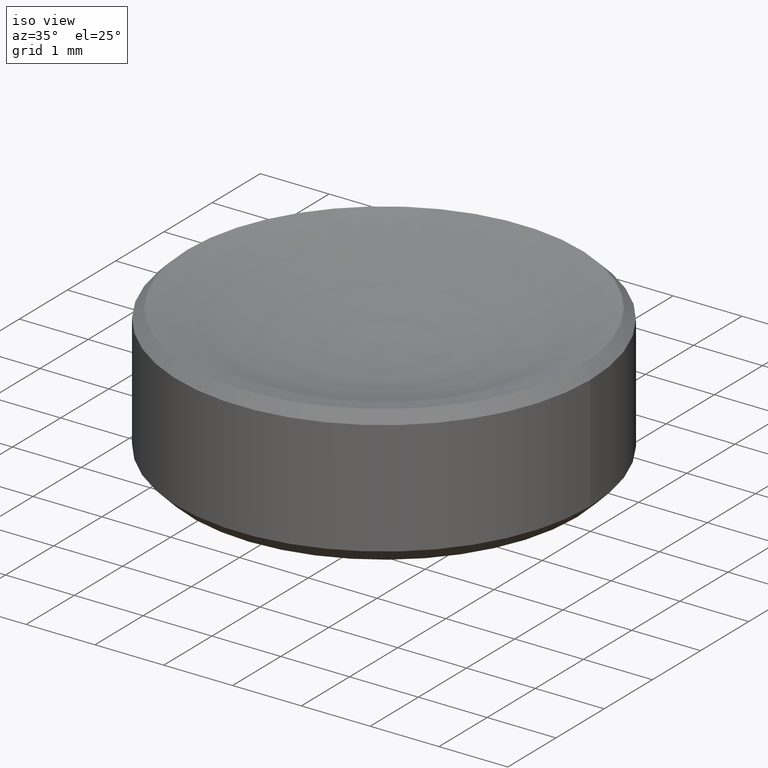
[diagram: clean part render]
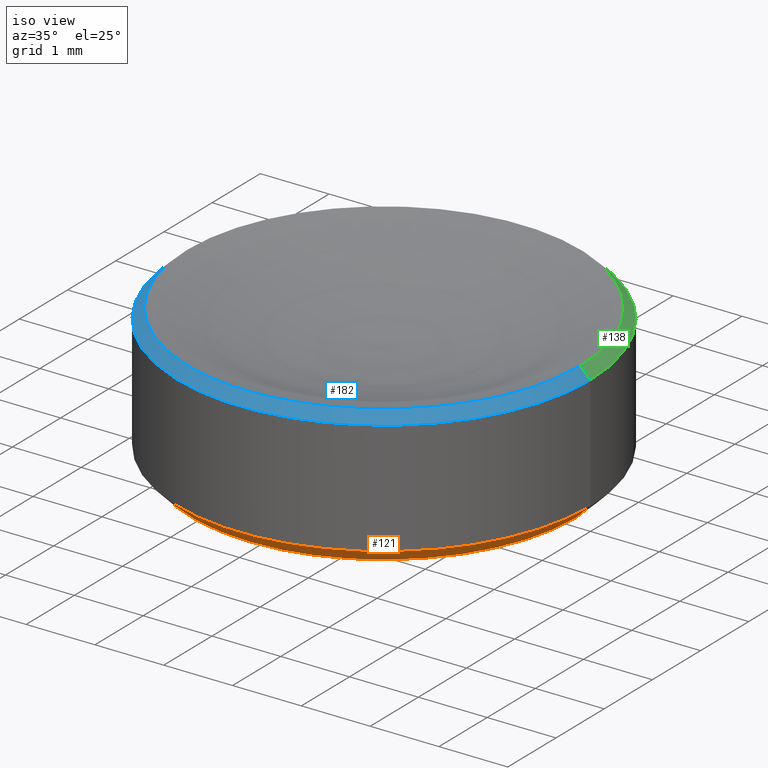
[diagram: same view with three faces highlighted in distinct colors, each labeled with its STEP entity id]
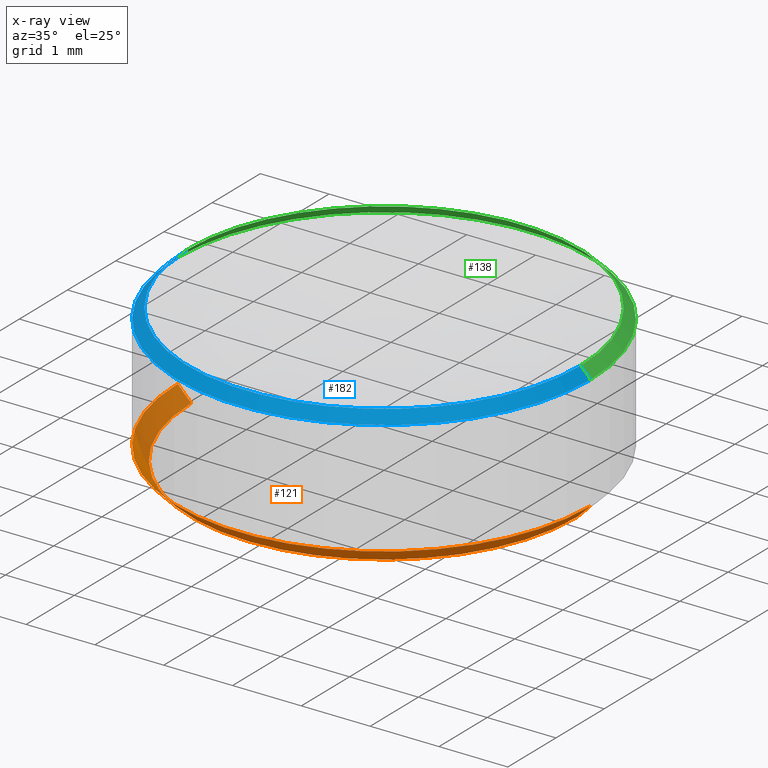
[diagram: x-ray of the same camera — body ghosted, the three highlighted faces saturated]
A machine part, iso view with three faces highlighted in distinct colors.
The next image is the same camera in x-ray (body ghosted, the three faces saturated) — at least one of them is partly hidden behind the body in this view.
Their STEP definitions:

[orange] entity #121 — the highlighted conical surface has half-angle 45 deg.
#1 = DIRECTION ( 'NONE',  ( -0.000000000000000000, -0.000000000000000000, 1.000000000000000000 ) ) ;
#3 = FACE_OUTER_BOUND ( 'NONE', #8, .T. ) ;
#8 = EDGE_LOOP ( 'NONE', ( #210, #163, #265, #141 ) ) ;
#12 = AXIS2_PLACEMENT_3D ( 'NONE', #216, #252, #111 ) ;
#16 = VECTOR ( 'NONE', #234, 1000.000000000000114 ) ;
#45 = LINE ( 'NONE', #236, #16 ) ;
#75 = CONICAL_SURFACE ( 'NONE', #228, 3.000000000000000000, 0.7853981633974482790 ) ;
#86 = CIRCLE ( 'NONE', #12, 2.799999999999998046 ) ;
#88 = CARTESIAN_POINT ( 'NONE',  ( 3.000000000000000000, 0.000000000000000000, 0.2000000000000020373 ) ) ;
#96 = CARTESIAN_POINT ( 'NONE',  ( -3.000000000000000000, 3.673940397442059868E-16, 0.2000000000000020373 ) ) ;
#106 = EDGE_CURVE ( 'NONE', #167, #114, #173, .T. ) ;
#111 = DIRECTION ( 'NONE',  ( 1.000000000000000000, 0.000000000000000000, 0.000000000000000000 ) ) ;
#114 = VERTEX_POINT ( 'NONE', #150 ) ;
#121 = ADVANCED_FACE ( 'NONE', ( #3 ), #75, .T. ) ;
#129 = DIRECTION ( 'NONE',  ( 1.000000000000000000, 0.000000000000000000, 0.000000000000000000 ) ) ;
#137 = EDGE_CURVE ( 'NONE', #245, #187, #45, .T. ) ;
#141 = ORIENTED_EDGE ( 'NONE', *, *, #155, .F. ) ;
#150 = CARTESIAN_POINT ( 'NONE',  ( 3.000000000000000000, 0.000000000000000000, 0.2000000000000020373 ) ) ;
#155 = EDGE_CURVE ( 'NONE', #187, #114, #198, .T. ) ;
#157 = CARTESIAN_POINT ( 'NONE',  ( -2.799999999999998046, 3.551475717527323339E-16, 1.836970198721029934E-16 ) ) ;
#163 = ORIENTED_EDGE ( 'NONE', *, *, #176, .F. ) ;
#167 = VERTEX_POINT ( 'NONE', #171 ) ;
#171 = CARTESIAN_POINT ( 'NONE',  ( 2.799999999999998046, 0.000000000000000000, 1.836970198721029934E-16 ) ) ;
#172 = DIRECTION ( 'NONE',  ( 0.7071067811865474617, 0.000000000000000000, 0.7071067811865474617 ) ) ;
#173 = LINE ( 'NONE', #88, #179 ) ;
#176 = EDGE_CURVE ( 'NONE', #167, #245, #86, .T. ) ;
#177 = DIRECTION ( 'NONE',  ( -0.000000000000000000, -0.000000000000000000, 1.000000000000000000 ) ) ;
#179 = VECTOR ( 'NONE', #172, 1000.000000000000114 ) ;
#187 = VERTEX_POINT ( 'NONE', #96 ) ;
#196 = DIRECTION ( 'NONE',  ( 1.000000000000000000, 0.000000000000000000, 0.000000000000000000 ) ) ;
#198 = CIRCLE ( 'NONE', #212, 3.000000000000000000 ) ;
#210 = ORIENTED_EDGE ( 'NONE', *, *, #137, .F. ) ;
#212 = AXIS2_PLACEMENT_3D ( 'NONE', #231, #177, #129 ) ;
#215 = CARTESIAN_POINT ( 'NONE',  ( 0.000000000000000000, 0.000000000000000000, 0.2000000000000020373 ) ) ;
#216 = CARTESIAN_POINT ( 'NONE',  ( 0.000000000000000000, 0.000000000000000000, 1.836970198721029934E-16 ) ) ;
#228 = AXIS2_PLACEMENT_3D ( 'NONE', #215, #1, #196 ) ;
#231 = CARTESIAN_POINT ( 'NONE',  ( 0.000000000000000000, 0.000000000000000000, 0.2000000000000020373 ) ) ;
#234 = DIRECTION ( 'NONE',  ( -0.7071067811865474617, 8.659560562354932858E-17, 0.7071067811865474617 ) ) ;
#236 = CARTESIAN_POINT ( 'NONE',  ( -3.000000000000000000, 3.673940397442059868E-16, 0.2000000000000020373 ) ) ;
#245 = VERTEX_POINT ( 'NONE', #157 ) ;
#252 = DIRECTION ( 'NONE',  ( 0.000000000000000000, 0.000000000000000000, -1.000000000000000000 ) ) ;
#265 = ORIENTED_EDGE ( 'NONE', *, *, #106, .T. ) ;

[blue] entity #182 — the highlighted conical surface has half-angle 45 deg.
#2 = CARTESIAN_POINT ( 'NONE',  ( 0.000000000000000000, 0.000000000000000000, 1.860000000000000542 ) ) ;
#6 = EDGE_CURVE ( 'NONE', #117, #57, #260, .T. ) ;
#9 = AXIS2_PLACEMENT_3D ( 'NONE', #253, #42, #71 ) ;
#14 = CARTESIAN_POINT ( 'NONE',  ( -3.000000000000000000, 3.673940397442059868E-16, 1.860000000000000542 ) ) ;
#17 = VERTEX_POINT ( 'NONE', #82 ) ;
#19 = DIRECTION ( 'NONE',  ( -0.7071067811865474617, 0.000000000000000000, -0.7071067811865474617 ) ) ;
#40 = ORIENTED_EDGE ( 'NONE', *, *, #6, .T. ) ;
#42 = DIRECTION ( 'NONE',  ( -0.000000000000000000, -0.000000000000000000, 1.000000000000000000 ) ) ;
#46 = CARTESIAN_POINT ( 'NONE',  ( 0.000000000000000000, 0.000000000000000000, 2.005191786043217572 ) ) ;
#57 = VERTEX_POINT ( 'NONE', #14 ) ;
#63 = CIRCLE ( 'NONE', #158, 3.000000000000000000 ) ;
#64 = LINE ( 'NONE', #83, #180 ) ;
#65 = EDGE_CURVE ( 'NONE', #17, #248, #64, .T. ) ;
#66 = DIRECTION ( 'NONE',  ( -1.000000000000000000, 0.000000000000000000, 0.000000000000000000 ) ) ;
#71 = DIRECTION ( 'NONE',  ( 1.000000000000000000, 0.000000000000000000, 0.000000000000000000 ) ) ;
#82 = CARTESIAN_POINT ( 'NONE',  ( 2.854808213956783192, 0.000000000000000000, 2.005191786043217572 ) ) ;
#83 = CARTESIAN_POINT ( 'NONE',  ( 2.854808213956783192, 3.496131741401746917E-16, 2.005191786043217572 ) ) ;
#87 = CARTESIAN_POINT ( 'NONE',  ( -2.854808213956783192, 3.496131741401746917E-16, 2.005191786043217572 ) ) ;
#94 = EDGE_CURVE ( 'NONE', #248, #57, #63, .T. ) ;
#98 = ORIENTED_EDGE ( 'NONE', *, *, #94, .F. ) ;
#100 = ORIENTED_EDGE ( 'NONE', *, *, #145, .F. ) ;
#101 = CONICAL_SURFACE ( 'NONE', #188, 2.854808213956783192, 0.7853981633974482790 ) ;
#109 = DIRECTION ( 'NONE',  ( 0.000000000000000000, 0.000000000000000000, -1.000000000000000000 ) ) ;
#110 = DIRECTION ( 'NONE',  ( 0.000000000000000000, 0.000000000000000000, -1.000000000000000000 ) ) ;
#117 = VERTEX_POINT ( 'NONE', #87 ) ;
#135 = DIRECTION ( 'NONE',  ( -1.000000000000000000, 0.000000000000000000, 0.000000000000000000 ) ) ;
#143 = ORIENTED_EDGE ( 'NONE', *, *, #65, .F. ) ;
#145 = EDGE_CURVE ( 'NONE', #117, #17, #251, .T. ) ;
#147 = VECTOR ( 'NONE', #19, 1000.000000000000114 ) ;
#148 = DIRECTION ( 'NONE',  ( 0.7071067811865474617, 8.659560562354932858E-17, -0.7071067811865474617 ) ) ;
#158 = AXIS2_PLACEMENT_3D ( 'NONE', #2, #109, #66 ) ;
#168 = EDGE_LOOP ( 'NONE', ( #143, #100, #40, #98 ) ) ;
#180 = VECTOR ( 'NONE', #148, 1000.000000000000114 ) ;
#182 = ADVANCED_FACE ( 'NONE', ( #199 ), #101, .T. ) ;
#188 = AXIS2_PLACEMENT_3D ( 'NONE', #46, #110, #135 ) ;
#199 = FACE_OUTER_BOUND ( 'NONE', #168, .T. ) ;
#225 = CARTESIAN_POINT ( 'NONE',  ( 3.000000000000000000, 0.000000000000000000, 1.860000000000000542 ) ) ;
#248 = VERTEX_POINT ( 'NONE', #225 ) ;
#251 = CIRCLE ( 'NONE', #9, 2.854808213956783192 ) ;
#253 = CARTESIAN_POINT ( 'NONE',  ( 0.000000000000000000, 0.000000000000000000, 2.005191786043217572 ) ) ;
#260 = LINE ( 'NONE', #263, #147 ) ;
#263 = CARTESIAN_POINT ( 'NONE',  ( -2.854808213956783192, 0.000000000000000000, 2.005191786043217572 ) ) ;

[green] entity #138 — the highlighted conical surface has half-angle 45 deg.
#6 = EDGE_CURVE ( 'NONE', #117, #57, #260, .T. ) ;
#10 = ORIENTED_EDGE ( 'NONE', *, *, #240, .F. ) ;
#14 = CARTESIAN_POINT ( 'NONE',  ( -3.000000000000000000, 3.673940397442059868E-16, 1.860000000000000542 ) ) ;
#17 = VERTEX_POINT ( 'NONE', #82 ) ;
#19 = DIRECTION ( 'NONE',  ( -0.7071067811865474617, 0.000000000000000000, -0.7071067811865474617 ) ) ;
#20 = EDGE_LOOP ( 'NONE', ( #37, #53, #10, #104 ) ) ;
#22 = AXIS2_PLACEMENT_3D ( 'NONE', #90, #149, #133 ) ;
#30 = CARTESIAN_POINT ( 'NONE',  ( 0.000000000000000000, 0.000000000000000000, 2.005191786043217572 ) ) ;
#37 = ORIENTED_EDGE ( 'NONE', *, *, #229, .F. ) ;
#47 = AXIS2_PLACEMENT_3D ( 'NONE', #30, #219, #246 ) ;
#53 = ORIENTED_EDGE ( 'NONE', *, *, #65, .T. ) ;
#57 = VERTEX_POINT ( 'NONE', #14 ) ;
#58 = DIRECTION ( 'NONE',  ( 0.000000000000000000, 0.000000000000000000, -1.000000000000000000 ) ) ;
#64 = LINE ( 'NONE', #83, #180 ) ;
#65 = EDGE_CURVE ( 'NONE', #17, #248, #64, .T. ) ;
#79 = CONICAL_SURFACE ( 'NONE', #22, 2.854808213956783192, 0.7853981633974482790 ) ;
#82 = CARTESIAN_POINT ( 'NONE',  ( 2.854808213956783192, 0.000000000000000000, 2.005191786043217572 ) ) ;
#83 = CARTESIAN_POINT ( 'NONE',  ( 2.854808213956783192, 3.496131741401746917E-16, 2.005191786043217572 ) ) ;
#87 = CARTESIAN_POINT ( 'NONE',  ( -2.854808213956783192, 3.496131741401746917E-16, 2.005191786043217572 ) ) ;
#90 = CARTESIAN_POINT ( 'NONE',  ( 0.000000000000000000, 0.000000000000000000, 2.005191786043217572 ) ) ;
#91 = DIRECTION ( 'NONE',  ( -1.000000000000000000, 0.000000000000000000, 0.000000000000000000 ) ) ;
#104 = ORIENTED_EDGE ( 'NONE', *, *, #6, .F. ) ;
#117 = VERTEX_POINT ( 'NONE', #87 ) ;
#133 = DIRECTION ( 'NONE',  ( -1.000000000000000000, 0.000000000000000000, 0.000000000000000000 ) ) ;
#138 = ADVANCED_FACE ( 'NONE', ( #255 ), #79, .T. ) ;
#147 = VECTOR ( 'NONE', #19, 1000.000000000000114 ) ;
#148 = DIRECTION ( 'NONE',  ( 0.7071067811865474617, 8.659560562354932858E-17, -0.7071067811865474617 ) ) ;
#149 = DIRECTION ( 'NONE',  ( 0.000000000000000000, 0.000000000000000000, -1.000000000000000000 ) ) ;
#164 = AXIS2_PLACEMENT_3D ( 'NONE', #223, #58, #91 ) ;
#174 = CIRCLE ( 'NONE', #47, 2.854808213956783192 ) ;
#180 = VECTOR ( 'NONE', #148, 1000.000000000000114 ) ;
#181 = CIRCLE ( 'NONE', #164, 3.000000000000000000 ) ;
#219 = DIRECTION ( 'NONE',  ( -0.000000000000000000, -0.000000000000000000, 1.000000000000000000 ) ) ;
#223 = CARTESIAN_POINT ( 'NONE',  ( 0.000000000000000000, 0.000000000000000000, 1.860000000000000542 ) ) ;
#225 = CARTESIAN_POINT ( 'NONE',  ( 3.000000000000000000, 0.000000000000000000, 1.860000000000000542 ) ) ;
#229 = EDGE_CURVE ( 'NONE', #17, #117, #174, .T. ) ;
#240 = EDGE_CURVE ( 'NONE', #57, #248, #181, .T. ) ;
#246 = DIRECTION ( 'NONE',  ( 1.000000000000000000, 0.000000000000000000, 0.000000000000000000 ) ) ;
#248 = VERTEX_POINT ( 'NONE', #225 ) ;
#255 = FACE_OUTER_BOUND ( 'NONE', #20, .T. ) ;
#260 = LINE ( 'NONE', #263, #147 ) ;
#263 = CARTESIAN_POINT ( 'NONE',  ( -2.854808213956783192, 0.000000000000000000, 2.005191786043217572 ) ) ;